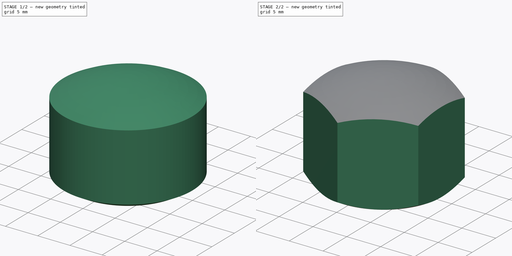
[diagram: build sequence overview — one tinted view per stage of 2, left to right]
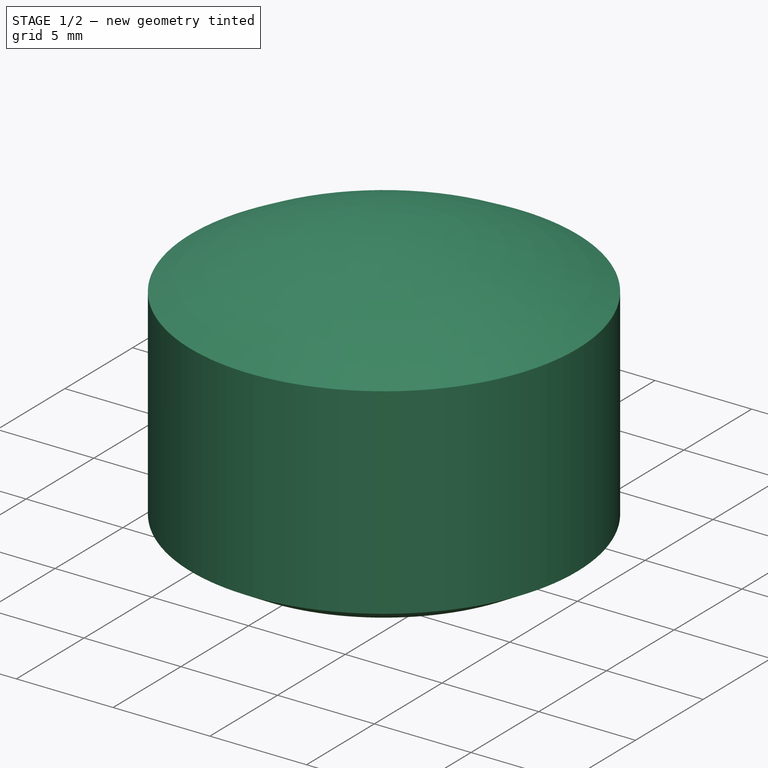
[diagram: stage 1 of 2 — iso view after this stage's code; geometry added in this stage tinted green]
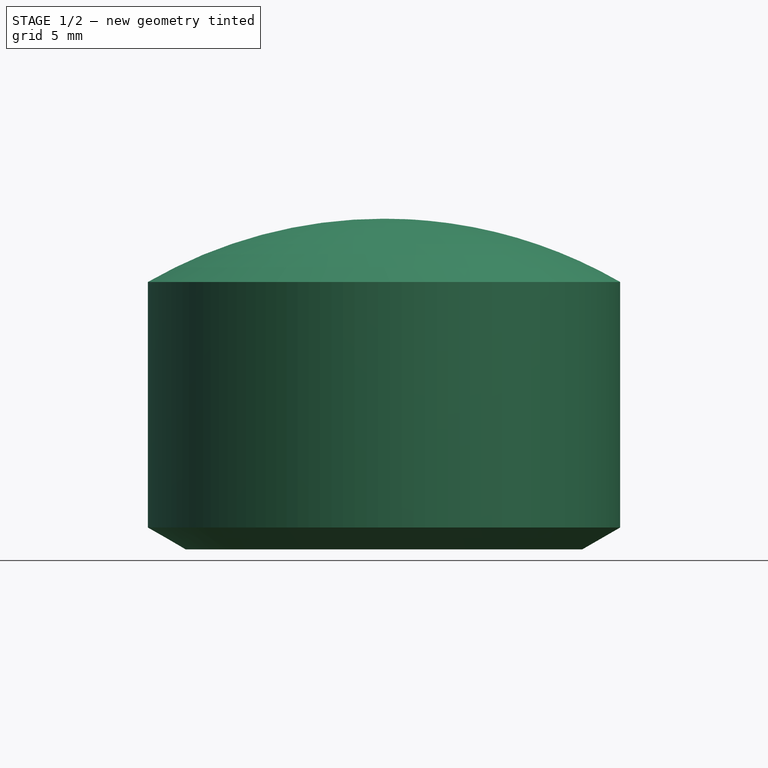
[diagram: stage 1 of 2 — front view after this stage's code; geometry added in this stage tinted green]
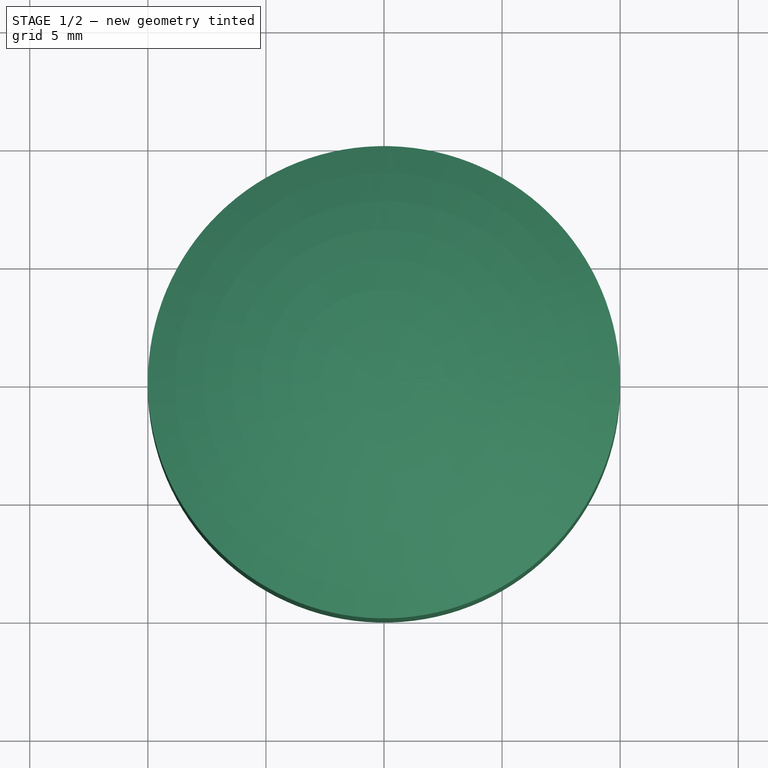
[diagram: stage 1 of 2 — top view after this stage's code; geometry added in this stage tinted green]
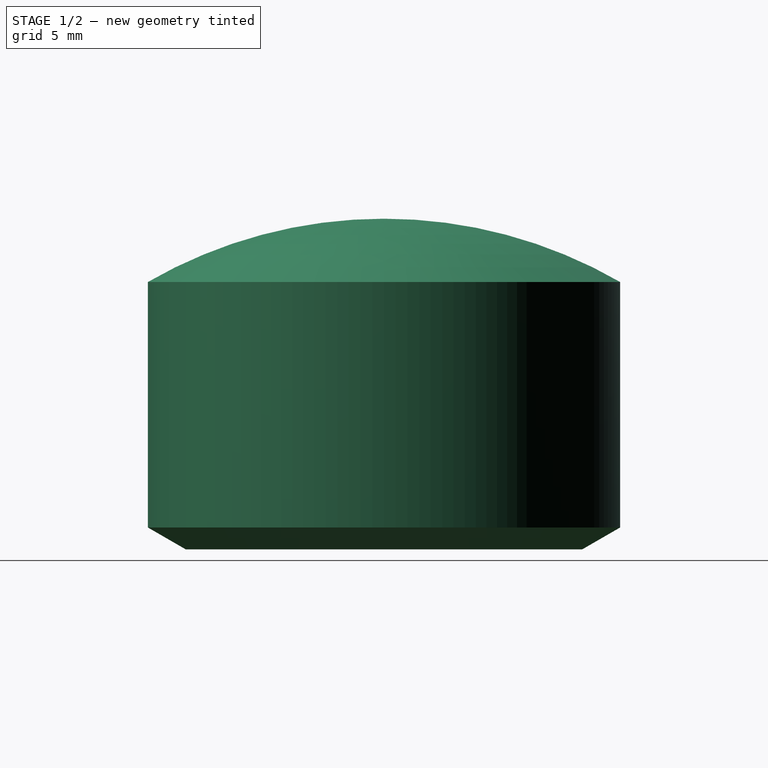
[diagram: stage 1 of 2 — right view after this stage's code; geometry added in this stage tinted green]
FCSTD DOCUMENT  (FreeCAD 0.14R3700 (Git))
Label: Hutmutter_DIN_917-M10
License: CC-BY 3.0
LicenseURL: http://creativecommons.org/licenses/by/3.0/
objects: Sketcher::SketchObject×2, PartDesign::Revolution×1, PartDesign::Pocket×1, Part::Feature×1
note: 7 computed .brp shape members not serialized (recipe doc carries the construction recipe); baked Part::Feature solids carry a one-line shape summary decoded from their .brp

FEATURE [Sketcher::SketchObject] Sketch
  Placement = pos=(0,0,0) rot=(1,0,0;1.5708rad)
  sketch-geometry (7):
    g0: LineSegment StartX=0 StartY=11.35 StartZ=0 EndX=4.25 EndY=11.35 EndZ=0
    g1: LineSegment StartX=4.25 StartY=11.35 StartZ=0 EndX=4.25 EndY=0 EndZ=0
    g2: LineSegment StartX=4.25 StartY=0 StartZ=0 EndX=8.4 EndY=0 EndZ=0
    g3: LineSegment StartX=8.4 StartY=0 StartZ=0 EndX=10 EndY=0.92376 EndZ=0
    g4: LineSegment StartX=10 StartY=0.92376 StartZ=0 EndX=10 EndY=11.3205 EndZ=0
    g5: LineSegment StartX=0 StartY=11.35 StartZ=0 EndX=0 EndY=14 EndZ=0
    g6: ArcOfCircle CenterX=0 CenterY=-6 CenterZ=0 NormalX=0 NormalY=0 NormalZ=1 Radius=20 StartAngle=1.0472 EndAngle=1.5708
  constraints (22):
    c: PointOnObject(g0,g-2)
    c: Horizontal(g0)
    c: Coincident(g0,g1)
    c: PointOnObject(g1,g-1)
    c: Vertical(g1)
    c: Coincident(g1,g2)
    c: Horizontal(g2)
    c: Coincident(g2,g3)
    c: Coincident(g3,g4)
    c: Vertical(g4)
    c: Coincident(g5,g0)
    c: Vertical(g5)
    c: Coincident(g6,g4)
    c: Coincident(g6,g5)
    c: Radius(g6) = 20
    c: DistanceX(g-1,g1) = 4.25
    c: DistanceY(g1) = -11.35
    c: DistanceY(g1,g5) = 14
    c: Angle(g3,g2) = 2.61799
    c: DistanceX(g-1,g3) = 10
    c: DistanceX(g-1,g2) = 8.4
    c: PointOnObject(g6,g-2)
FEATURE [PartDesign::Revolution] Revolution
  Angle = 360
  Axis = (0,0,1)
  Base = (0,0,0)
  Placement = pos=(0,0,0) rot=(1,0,0;1.5708rad)
  ReferenceAxis = -> Sketch [V_Axis]
  Reversed = true
  Sketch = -> Sketch
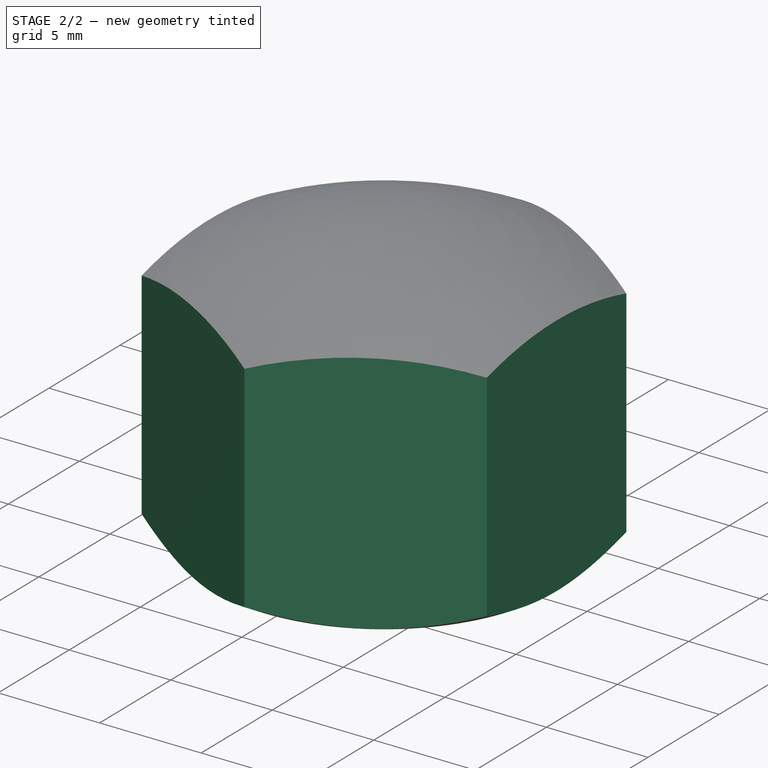
[diagram: stage 2 of 2 — iso view after this stage's code; geometry added in this stage tinted green]
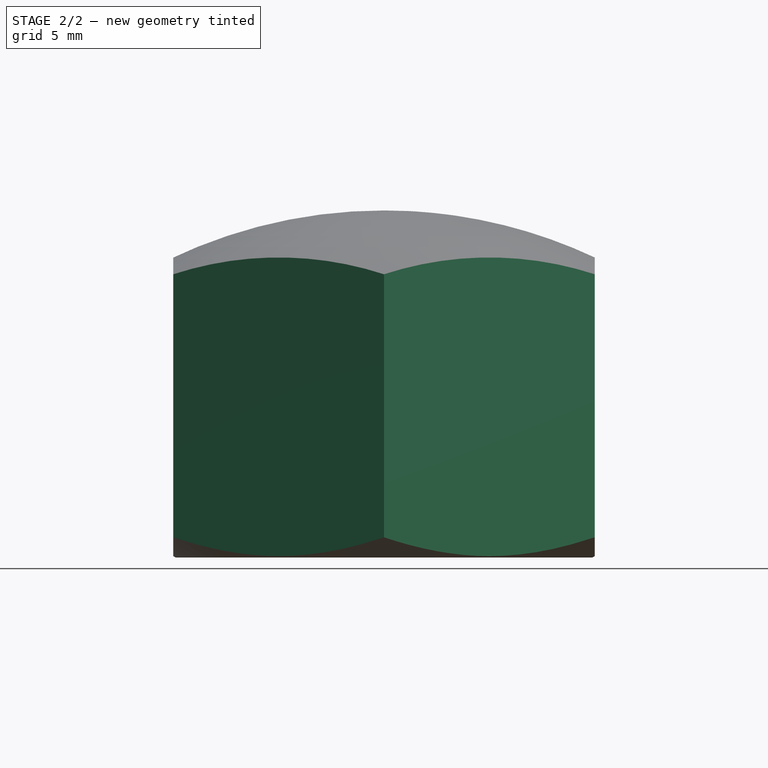
[diagram: stage 2 of 2 — front view after this stage's code; geometry added in this stage tinted green]
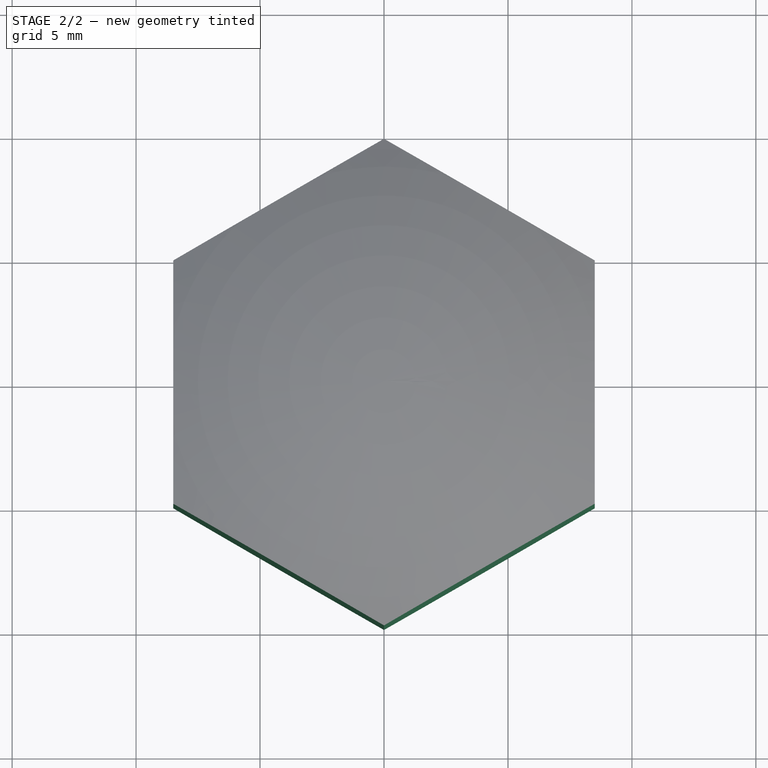
[diagram: stage 2 of 2 — top view after this stage's code; geometry added in this stage tinted green]
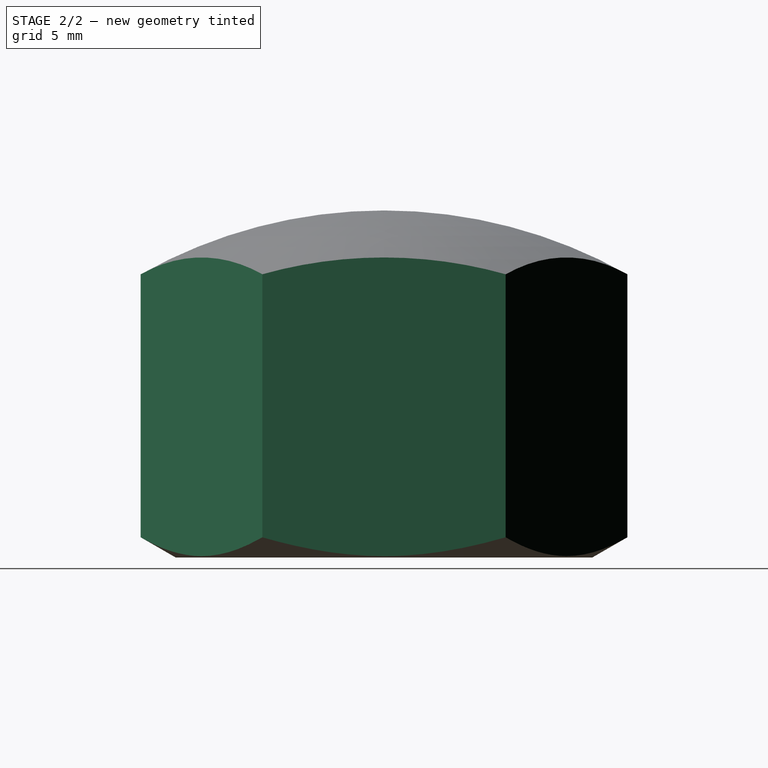
[diagram: stage 2 of 2 — right view after this stage's code; geometry added in this stage tinted green]
FEATURE [Sketcher::SketchObject] Sketch001
  Placement = pos=(0,0,0) rot=(1,0,0;3.14159rad)
  Support = -> Revolution [Face3]
  sketch-geometry (7):
    g0: LineSegment StartX=-8.5 StartY=4.90748 StartZ=0 EndX=-8.5 EndY=-4.90748 EndZ=0
    g1: LineSegment StartX=-8.5 StartY=-4.90748 StartZ=0 EndX=0 EndY=-9.81495 EndZ=0
    g2: LineSegment StartX=0 StartY=-9.81495 StartZ=0 EndX=8.5 EndY=-4.90748 EndZ=0
    g3: LineSegment StartX=8.5 StartY=-4.90748 StartZ=0 EndX=8.5 EndY=4.90748 EndZ=0
    g4: LineSegment StartX=8.5 StartY=4.90748 StartZ=0 EndX=0 EndY=9.81495 EndZ=0
    g5: LineSegment StartX=0 StartY=9.81495 StartZ=0 EndX=-8.5 EndY=4.90748 EndZ=0
    g6: Circle CenterX=0 CenterY=0 CenterZ=0 NormalX=0 NormalY=0 NormalZ=1 Radius=10
  constraints (20):
    c: Vertical(g0)
    c: Coincident(g0,g1)
    c: PointOnObject(g1,g-2)
    c: Coincident(g1,g2)
    c: Coincident(g2,g3)
    c: Vertical(g3)
    c: Coincident(g3,g4)
    c: PointOnObject(g4,g-2)
    c: Coincident(g4,g5)
    c: Coincident(g5,g0)
    c: Equal(g5,g0)
    c: Equal(g0,g1)
    c: Equal(g1,g2)
    c: Equal(g2,g3)
    c: Equal(g3,g4)
    c: Angle(g4,g3) = 2.0944
    c: Symmetric(g4,g1,g-1)
    c: DistanceX(g3,g0) = -17
    c: Coincident(g6,g-1)
    c: Radius(g6) = 10
FEATURE [PartDesign::Pocket] Pocket  label="Hutmutter DIN 917 - M10 #"
  Length = 14
  Placement = pos=(0,0,0) rot=(1,0,0;1.5708rad)
  Sketch = -> Sketch001
  Type = 0
FEATURE [Part::Feature] Pocket001  label="Hutmutter DIN 917 - M10 #001"
  Placement = pos=(0,0,0) rot=(1,0,0;1.5708rad)
  shape: bbox 19.63 x 19.63 x 14.02 mm, 11 faces (baked)
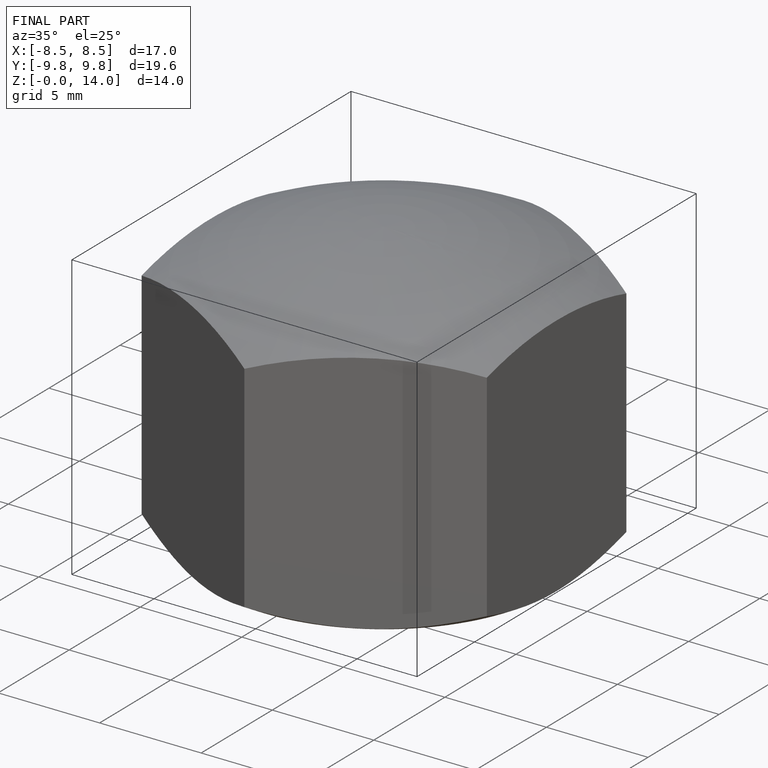
[diagram: finished part — iso view with bounding-box wireframe]
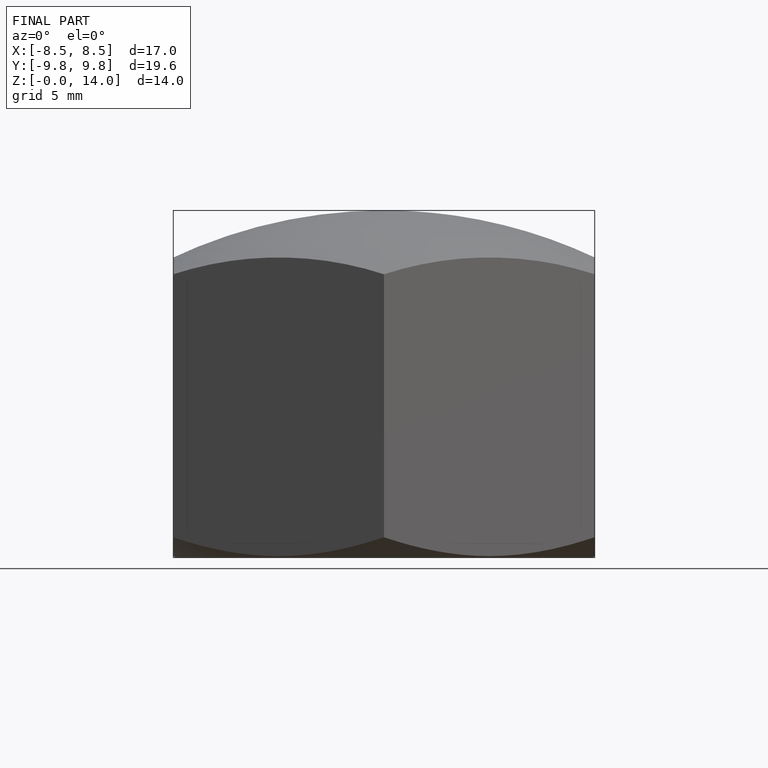
[diagram: finished part — front view with bounding-box wireframe]
